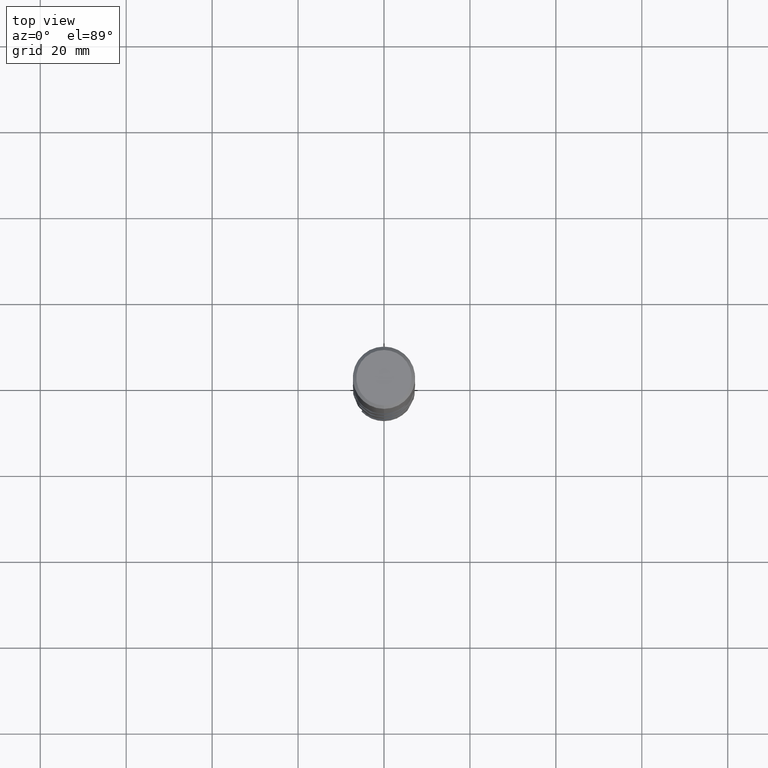
[diagram: clean part render]
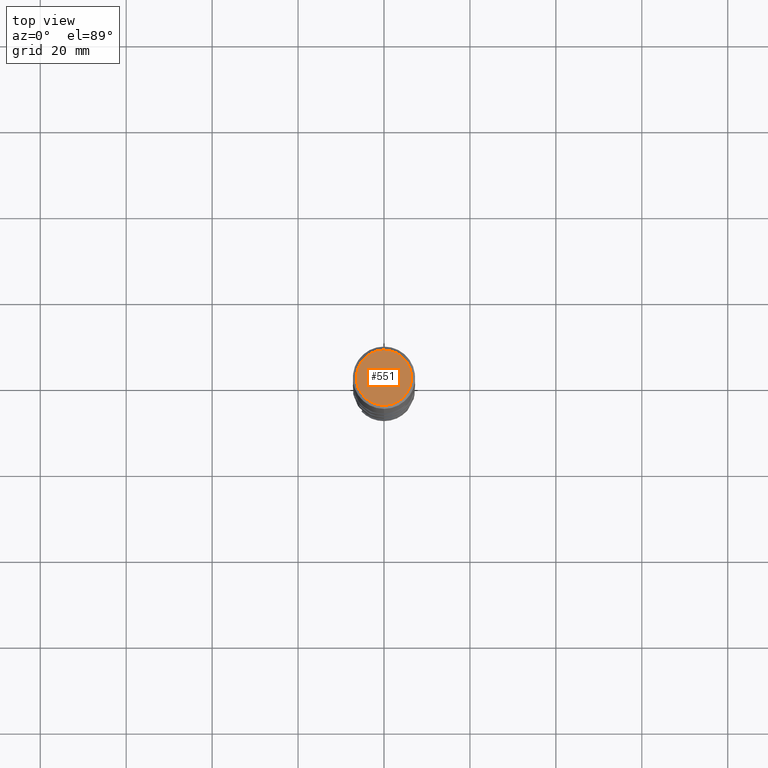
[diagram: same view with one face highlighted and labeled with its STEP entity id]
A machine part, top view. The second image highlights one B-rep face of the part: STEP entity #551.
In plain terms, the highlighted planar face has unit normal (-0, 0, 1).
Its self-contained STEP definition (entity closure, byte-faithful):
#409=VERTEX_POINT('',#897);
#541=EDGE_CURVE('',#409,#613,#1044,.T.);
#551=ADVANCED_FACE('',(#1054),#1055,.T.);
#613=VERTEX_POINT('',#1121);
#709=EDGE_CURVE('',#613,#409,#1226,.T.);
#897=CARTESIAN_POINT('',(0.0,6.45,0.0));
#1044=CIRCLE('',#4542,6.45);
#1054=FACE_OUTER_BOUND('',#4556,.T.);
#1055=PLANE('',#4557);
#1121=CARTESIAN_POINT('',(7.89871098215434E-016,-6.45,0.0));
#1226=CIRCLE('',#6779,6.45);
#4542=AXIS2_PLACEMENT_3D('',#7485,#7486,#7487);
#4556=EDGE_LOOP('',(#7489,#7490));
#4557=AXIS2_PLACEMENT_3D('',#7491,#7492,#7493);
#6779=AXIS2_PLACEMENT_3D('',#7644,#7645,#7646);
#7485=CARTESIAN_POINT('',(0.0,0.0,0.0));
#7486=DIRECTION('',(0.0,0.0,-1.0));
#7487=DIRECTION('',(0.0,1.0,0.0));
#7489=ORIENTED_EDGE('',*,*,#541,.F.);
#7490=ORIENTED_EDGE('',*,*,#709,.F.);
#7491=CARTESIAN_POINT('',(0.0,3.225,0.0));
#7492=DIRECTION('',(-0.0,0.0,1.0));
#7493=DIRECTION('',(0.0,-1.0,0.0));
#7644=CARTESIAN_POINT('',(0.0,0.0,0.0));
#7645=DIRECTION('',(0.0,0.0,-1.0));
#7646=DIRECTION('',(0.0,1.0,0.0));